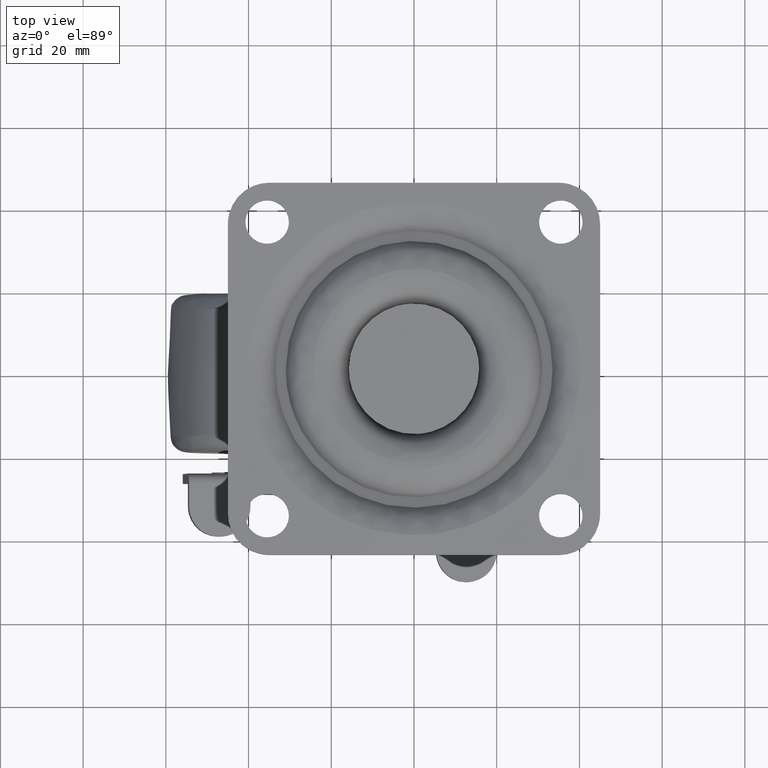
[diagram: clean part render]
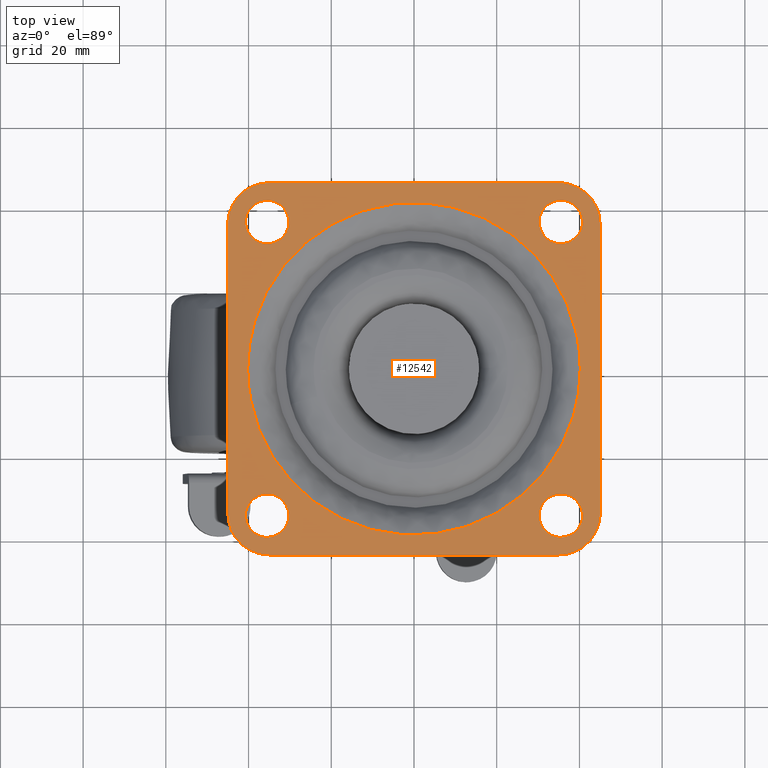
[diagram: same view with one face highlighted and labeled with its STEP entity id]
A machine part, top view. The second image highlights one B-rep face of the part: STEP entity #12542.
In plain terms, the highlighted face is a freeform B-spline surface patch.
Its self-contained STEP definition (entity closure, byte-faithful):
#11165=CARTESIAN_POINT('',(-35.820504832751801,30.259792308297051,2.775558E-017));
#11166=VERTEX_POINT('',#11165);
#11167=CARTESIAN_POINT('',(-30.250000000000000,35.500000000000000,0.0));
#11168=VERTEX_POINT('',#11167);
#11169=CARTESIAN_POINT('',(-35.820504832751809,30.259792308297047,0.0));
#11170=CARTESIAN_POINT('',(-35.660402007414767,30.250000000000000,0.0));
#11171=CARTESIAN_POINT('',(-35.500000000000000,30.250000000000000,0.0));
#11172=CARTESIAN_POINT('',(-30.249999999999986,30.249999999999986,0.0));
#11173=CARTESIAN_POINT('',(-30.250000000000000,35.500000000000000,0.0));
#11181=(BOUNDED_CURVE()B_SPLINE_CURVE(2,(#11169,#11170,#11171,#11172,#11173),.UNSPECIFIED.,.F.,.U.)B_SPLINE_CURVE_WITH_KNOTS((3,2,3),(0.239332962235587,0.250000000000000,0.500000000000000),.UNSPECIFIED.)CURVE()GEOMETRIC_REPRESENTATION_ITEM()RATIONAL_B_SPLINE_CURVE((0.976072041659525,0.987502787895906,1.0,0.707106781186547,1.0))REPRESENTATION_ITEM(''));
#11182=EDGE_CURVE('',#11166,#11168,#11181,.T.);
#11184=CARTESIAN_POINT('',(-35.179495167248213,40.740207691702949,2.775558E-017));
#11185=VERTEX_POINT('',#11184);
#11186=CARTESIAN_POINT('',(-30.250000000000000,35.500000000000000,0.0));
#11187=CARTESIAN_POINT('',(-30.249999999999986,40.438706851071906,0.0));
#11188=CARTESIAN_POINT('',(-35.179495167248206,40.740207691702935,0.0));
#11196=(BOUNDED_CURVE()B_SPLINE_CURVE(2,(#11186,#11187,#11188),.UNSPECIFIED.,.F.,.U.)B_SPLINE_CURVE_WITH_KNOTS((3,3),(0.500000000000000,0.739332962235587),.UNSPECIFIED.)CURVE()GEOMETRIC_REPRESENTATION_ITEM()RATIONAL_B_SPLINE_CURVE((1.0,0.719603993290642,0.976072041659526))REPRESENTATION_ITEM(''));
#11197=EDGE_CURVE('',#11168,#11185,#11196,.T.);
#11264=CARTESIAN_POINT('',(-40.749999999999993,35.500000000000000,0.0));
#11265=VERTEX_POINT('',#11264);
#11266=CARTESIAN_POINT('',(-40.749999999999993,35.500000000000000,0.0));
#11267=CARTESIAN_POINT('',(-40.749999999999986,30.561293148928090,0.0));
#11268=CARTESIAN_POINT('',(-35.820504832751809,30.259792308297044,0.0));
#11276=(BOUNDED_CURVE()B_SPLINE_CURVE(2,(#11266,#11267,#11268),.UNSPECIFIED.,.F.,.U.)B_SPLINE_CURVE_WITH_KNOTS((3,3),(0.0,0.239332962235587),.UNSPECIFIED.)CURVE()GEOMETRIC_REPRESENTATION_ITEM()RATIONAL_B_SPLINE_CURVE((1.0,0.719603993290642,0.976072041659525))REPRESENTATION_ITEM(''));
#11277=EDGE_CURVE('',#11265,#11166,#11276,.T.);
#11311=CARTESIAN_POINT('',(-35.179495167248206,40.740207691702928,0.0));
#11312=CARTESIAN_POINT('',(-35.339597992585240,40.749999999999986,0.0));
#11313=CARTESIAN_POINT('',(-35.500000000000000,40.749999999999993,0.0));
#11314=CARTESIAN_POINT('',(-40.749999999999986,40.749999999999986,0.0));
#11315=CARTESIAN_POINT('',(-40.749999999999993,35.500000000000000,0.0));
#11323=(BOUNDED_CURVE()B_SPLINE_CURVE(2,(#11311,#11312,#11313,#11314,#11315),.UNSPECIFIED.,.F.,.U.)B_SPLINE_CURVE_WITH_KNOTS((3,2,3),(0.739332962235587,0.750000000000000,1.0),.UNSPECIFIED.)CURVE()GEOMETRIC_REPRESENTATION_ITEM()RATIONAL_B_SPLINE_CURVE((0.976072041659526,0.987502787895906,1.0,0.707106781186547,1.0))REPRESENTATION_ITEM(''));
#11324=EDGE_CURVE('',#11185,#11265,#11323,.T.);
#11347=CARTESIAN_POINT('',(35.179495167248199,30.259792308297051,-1.665335E-016));
#11348=VERTEX_POINT('',#11347);
#11349=CARTESIAN_POINT('',(40.749999999999993,35.500000000000000,0.0));
#11350=VERTEX_POINT('',#11349);
#11351=CARTESIAN_POINT('',(35.179495167248199,30.259792308297051,0.0));
#11352=CARTESIAN_POINT('',(35.339597992585240,30.249999999999996,0.0));
#11353=CARTESIAN_POINT('',(35.500000000000000,30.250000000000000,0.0));
#11354=CARTESIAN_POINT('',(40.749999999999986,30.249999999999986,0.0));
#11355=CARTESIAN_POINT('',(40.749999999999993,35.500000000000000,0.0));
#11363=(BOUNDED_CURVE()B_SPLINE_CURVE(2,(#11351,#11352,#11353,#11354,#11355),.UNSPECIFIED.,.F.,.U.)B_SPLINE_CURVE_WITH_KNOTS((3,2,3),(0.239332962235587,0.250000000000000,0.500000000000000),.UNSPECIFIED.)CURVE()GEOMETRIC_REPRESENTATION_ITEM()RATIONAL_B_SPLINE_CURVE((0.976072041659525,0.987502787895906,1.0,0.707106781186547,1.0))REPRESENTATION_ITEM(''));
#11364=EDGE_CURVE('',#11348,#11350,#11363,.T.);
#11366=CARTESIAN_POINT('',(35.820504832751787,40.740207691702949,2.775558E-017));
#11367=VERTEX_POINT('',#11366);
#11368=CARTESIAN_POINT('',(40.749999999999993,35.500000000000000,0.0));
#11369=CARTESIAN_POINT('',(40.749999999999993,40.438706851071906,0.0));
#11370=CARTESIAN_POINT('',(35.820504832751787,40.740207691702935,0.0));
#11378=(BOUNDED_CURVE()B_SPLINE_CURVE(2,(#11368,#11369,#11370),.UNSPECIFIED.,.F.,.U.)B_SPLINE_CURVE_WITH_KNOTS((3,3),(0.500000000000000,0.739332962235587),.UNSPECIFIED.)CURVE()GEOMETRIC_REPRESENTATION_ITEM()RATIONAL_B_SPLINE_CURVE((1.0,0.719603993290642,0.976072041659526))REPRESENTATION_ITEM(''));
#11379=EDGE_CURVE('',#11350,#11367,#11378,.T.);
#11446=CARTESIAN_POINT('',(30.250000000000000,35.500000000000000,0.0));
#11447=VERTEX_POINT('',#11446);
#11448=CARTESIAN_POINT('',(30.250000000000000,35.500000000000000,0.0));
#11449=CARTESIAN_POINT('',(30.249999999999993,30.561293148928080,0.0));
#11450=CARTESIAN_POINT('',(35.179495167248199,30.259792308297051,0.0));
#11458=(BOUNDED_CURVE()B_SPLINE_CURVE(2,(#11448,#11449,#11450),.UNSPECIFIED.,.F.,.U.)B_SPLINE_CURVE_WITH_KNOTS((3,3),(0.0,0.239332962235587),.UNSPECIFIED.)CURVE()GEOMETRIC_REPRESENTATION_ITEM()RATIONAL_B_SPLINE_CURVE((1.0,0.719603993290642,0.976072041659525))REPRESENTATION_ITEM(''));
#11459=EDGE_CURVE('',#11447,#11348,#11458,.T.);
#11493=CARTESIAN_POINT('',(35.820504832751787,40.740207691702935,0.0));
#11494=CARTESIAN_POINT('',(35.660402007414753,40.749999999999986,0.0));
#11495=CARTESIAN_POINT('',(35.500000000000000,40.749999999999993,0.0));
#11496=CARTESIAN_POINT('',(30.249999999999986,40.749999999999986,0.0));
#11497=CARTESIAN_POINT('',(30.250000000000000,35.500000000000000,0.0));
#11505=(BOUNDED_CURVE()B_SPLINE_CURVE(2,(#11493,#11494,#11495,#11496,#11497),.UNSPECIFIED.,.F.,.U.)B_SPLINE_CURVE_WITH_KNOTS((3,2,3),(0.739332962235587,0.750000000000000,1.0),.UNSPECIFIED.)CURVE()GEOMETRIC_REPRESENTATION_ITEM()RATIONAL_B_SPLINE_CURVE((0.976072041659526,0.987502787895906,1.0,0.707106781186547,1.0))REPRESENTATION_ITEM(''));
#11506=EDGE_CURVE('',#11367,#11447,#11505,.T.);
#11529=CARTESIAN_POINT('',(35.179495167248199,-40.740207691702949,2.775558E-017));
#11530=VERTEX_POINT('',#11529);
#11531=CARTESIAN_POINT('',(40.749999999999993,-35.500000000000000,0.0));
#11532=VERTEX_POINT('',#11531);
#11533=CARTESIAN_POINT('',(35.179495167248199,-40.740207691702942,0.0));
#11534=CARTESIAN_POINT('',(35.339597992585233,-40.749999999999993,0.0));
#11535=CARTESIAN_POINT('',(35.500000000000000,-40.749999999999993,0.0));
#11536=CARTESIAN_POINT('',(40.749999999999986,-40.749999999999986,0.0));
#11537=CARTESIAN_POINT('',(40.749999999999993,-35.500000000000000,0.0));
#11545=(BOUNDED_CURVE()B_SPLINE_CURVE(2,(#11533,#11534,#11535,#11536,#11537),.UNSPECIFIED.,.F.,.U.)B_SPLINE_CURVE_WITH_KNOTS((3,2,3),(0.239332962235587,0.250000000000000,0.500000000000000),.UNSPECIFIED.)CURVE()GEOMETRIC_REPRESENTATION_ITEM()RATIONAL_B_SPLINE_CURVE((0.976072041659525,0.987502787895906,1.0,0.707106781186547,1.0))REPRESENTATION_ITEM(''));
#11546=EDGE_CURVE('',#11530,#11532,#11545,.T.);
#11548=CARTESIAN_POINT('',(35.820504832751787,-30.259792308297051,2.775558E-017));
#11549=VERTEX_POINT('',#11548);
#11550=CARTESIAN_POINT('',(40.749999999999993,-35.500000000000000,0.0));
#11551=CARTESIAN_POINT('',(40.749999999999993,-30.561293148928076,0.0));
#11552=CARTESIAN_POINT('',(35.820504832751787,-30.259792308297047,0.0));
#11560=(BOUNDED_CURVE()B_SPLINE_CURVE(2,(#11550,#11551,#11552),.UNSPECIFIED.,.F.,.U.)B_SPLINE_CURVE_WITH_KNOTS((3,3),(0.500000000000000,0.739332962235587),.UNSPECIFIED.)CURVE()GEOMETRIC_REPRESENTATION_ITEM()RATIONAL_B_SPLINE_CURVE((1.0,0.719603993290642,0.976072041659526))REPRESENTATION_ITEM(''));
#11561=EDGE_CURVE('',#11532,#11549,#11560,.T.);
#11628=CARTESIAN_POINT('',(30.250000000000000,-35.500000000000000,0.0));
#11629=VERTEX_POINT('',#11628);
#11630=CARTESIAN_POINT('',(30.250000000000000,-35.500000000000000,0.0));
#11631=CARTESIAN_POINT('',(30.249999999999996,-40.438706851071913,0.0));
#11632=CARTESIAN_POINT('',(35.179495167248199,-40.740207691702942,0.0));
#11640=(BOUNDED_CURVE()B_SPLINE_CURVE(2,(#11630,#11631,#11632),.UNSPECIFIED.,.F.,.U.)B_SPLINE_CURVE_WITH_KNOTS((3,3),(0.0,0.239332962235587),.UNSPECIFIED.)CURVE()GEOMETRIC_REPRESENTATION_ITEM()RATIONAL_B_SPLINE_CURVE((1.0,0.719603993290642,0.976072041659525))REPRESENTATION_ITEM(''));
#11641=EDGE_CURVE('',#11629,#11530,#11640,.T.);
#11675=CARTESIAN_POINT('',(35.820504832751801,-30.259792308297047,0.0));
#11676=CARTESIAN_POINT('',(35.660402007414760,-30.249999999999996,0.0));
#11677=CARTESIAN_POINT('',(35.500000000000000,-30.250000000000000,0.0));
#11678=CARTESIAN_POINT('',(30.249999999999986,-30.249999999999986,0.0));
#11679=CARTESIAN_POINT('',(30.250000000000000,-35.500000000000000,0.0));
#11687=(BOUNDED_CURVE()B_SPLINE_CURVE(2,(#11675,#11676,#11677,#11678,#11679),.UNSPECIFIED.,.F.,.U.)B_SPLINE_CURVE_WITH_KNOTS((3,2,3),(0.739332962235587,0.750000000000000,1.0),.UNSPECIFIED.)CURVE()GEOMETRIC_REPRESENTATION_ITEM()RATIONAL_B_SPLINE_CURVE((0.976072041659525,0.987502787895906,1.0,0.707106781186547,1.0))REPRESENTATION_ITEM(''));
#11688=EDGE_CURVE('',#11549,#11629,#11687,.T.);
#11711=CARTESIAN_POINT('',(-35.820504832751787,-40.740207691702949,2.775558E-017));
#11712=VERTEX_POINT('',#11711);
#11713=CARTESIAN_POINT('',(-30.250000000000000,-35.500000000000000,0.0));
#11714=VERTEX_POINT('',#11713);
#11715=CARTESIAN_POINT('',(-35.820504832751787,-40.740207691702942,0.0));
#11716=CARTESIAN_POINT('',(-35.660402007414753,-40.749999999999993,0.0));
#11717=CARTESIAN_POINT('',(-35.500000000000000,-40.749999999999993,0.0));
#11718=CARTESIAN_POINT('',(-30.249999999999986,-40.749999999999986,0.0));
#11719=CARTESIAN_POINT('',(-30.250000000000000,-35.500000000000000,0.0));
#11727=(BOUNDED_CURVE()B_SPLINE_CURVE(2,(#11715,#11716,#11717,#11718,#11719),.UNSPECIFIED.,.F.,.U.)B_SPLINE_CURVE_WITH_KNOTS((3,2,3),(0.239332962235587,0.250000000000000,0.500000000000000),.UNSPECIFIED.)CURVE()GEOMETRIC_REPRESENTATION_ITEM()RATIONAL_B_SPLINE_CURVE((0.976072041659526,0.987502787895906,1.0,0.707106781186547,1.0))REPRESENTATION_ITEM(''));
#11728=EDGE_CURVE('',#11712,#11714,#11727,.T.);
#11730=CARTESIAN_POINT('',(-35.179495167248213,-30.259792308297051,-1.665335E-016));
#11731=VERTEX_POINT('',#11730);
#11732=CARTESIAN_POINT('',(-30.250000000000000,-35.500000000000000,0.0));
#11733=CARTESIAN_POINT('',(-30.249999999999986,-30.561293148928076,0.0));
#11734=CARTESIAN_POINT('',(-35.179495167248206,-30.259792308297047,0.0));
#11742=(BOUNDED_CURVE()B_SPLINE_CURVE(2,(#11732,#11733,#11734),.UNSPECIFIED.,.F.,.U.)B_SPLINE_CURVE_WITH_KNOTS((3,3),(0.500000000000000,0.739332962235587),.UNSPECIFIED.)CURVE()GEOMETRIC_REPRESENTATION_ITEM()RATIONAL_B_SPLINE_CURVE((1.0,0.719603993290642,0.976072041659526))REPRESENTATION_ITEM(''));
#11743=EDGE_CURVE('',#11714,#11731,#11742,.T.);
#11810=CARTESIAN_POINT('',(-40.749999999999993,-35.500000000000000,0.0));
#11811=VERTEX_POINT('',#11810);
#11812=CARTESIAN_POINT('',(-40.749999999999993,-35.500000000000000,0.0));
#11813=CARTESIAN_POINT('',(-40.749999999999993,-40.438706851071920,0.0));
#11814=CARTESIAN_POINT('',(-35.820504832751794,-40.740207691702928,0.0));
#11822=(BOUNDED_CURVE()B_SPLINE_CURVE(2,(#11812,#11813,#11814),.UNSPECIFIED.,.F.,.U.)B_SPLINE_CURVE_WITH_KNOTS((3,3),(0.0,0.239332962235587),.UNSPECIFIED.)CURVE()GEOMETRIC_REPRESENTATION_ITEM()RATIONAL_B_SPLINE_CURVE((1.0,0.719603993290641,0.976072041659526))REPRESENTATION_ITEM(''));
#11823=EDGE_CURVE('',#11811,#11712,#11822,.T.);
#11857=CARTESIAN_POINT('',(-35.179495167248206,-30.259792308297051,0.0));
#11858=CARTESIAN_POINT('',(-35.339597992585240,-30.249999999999996,0.0));
#11859=CARTESIAN_POINT('',(-35.500000000000000,-30.250000000000000,0.0));
#11860=CARTESIAN_POINT('',(-40.749999999999986,-30.249999999999986,0.0));
#11861=CARTESIAN_POINT('',(-40.749999999999993,-35.500000000000000,0.0));
#11869=(BOUNDED_CURVE()B_SPLINE_CURVE(2,(#11857,#11858,#11859,#11860,#11861),.UNSPECIFIED.,.F.,.U.)B_SPLINE_CURVE_WITH_KNOTS((3,2,3),(0.739332962235587,0.750000000000000,1.0),.UNSPECIFIED.)CURVE()GEOMETRIC_REPRESENTATION_ITEM()RATIONAL_B_SPLINE_CURVE((0.976072041659526,0.987502787895906,1.0,0.707106781186547,1.0))REPRESENTATION_ITEM(''));
#11870=EDGE_CURVE('',#11731,#11811,#11869,.T.);
#12266=CARTESIAN_POINT('',(-38.540439564951292,11.460112629843660,-1.113611E-015));
#12267=VERTEX_POINT('',#12266);
#12281=CARTESIAN_POINT('',(-40.208203932499401,0.0,0.0));
#12282=VERTEX_POINT('',#12281);
#12283=CARTESIAN_POINT('',(-40.208203932499401,0.0,0.0));
#12284=CARTESIAN_POINT('',(-40.208203931730026,5.851409309881770,-5.568056E-016));
#12285=CARTESIAN_POINT('',(-38.540439564951278,11.460112629843657,-1.113611E-015));
#12293=(BOUNDED_CURVE()B_SPLINE_CURVE(2,(#12283,#12284,#12285),.UNSPECIFIED.,.F.,.U.)B_SPLINE_CURVE_WITH_KNOTS((3,3),(0.0,0.048526662065398),.UNSPECIFIED.)CURVE()GEOMETRIC_REPRESENTATION_ITEM()RATIONAL_B_SPLINE_CURVE((1.0,0.943147478997572,0.908365862589150))REPRESENTATION_ITEM(''));
#12294=EDGE_CURVE('',#12282,#12267,#12293,.T.);
#12296=CARTESIAN_POINT('',(38.540439564951299,-11.460112629843660,-1.113611E-015));
#12297=VERTEX_POINT('',#12296);
#12298=CARTESIAN_POINT('',(38.540439564951299,-11.460112629843660,-1.113611E-015));
#12299=CARTESIAN_POINT('',(37.795821765132509,-13.965342330398570,-1.108348E-015));
#12300=CARTESIAN_POINT('',(36.268088796374869,-17.717719020729088,-1.094754E-015));
#12301=CARTESIAN_POINT('',(33.475686237040442,-22.408159612348609,-1.065537E-015));
#12302=CARTESIAN_POINT('',(30.562148134557368,-26.298647580398530,-1.033031E-015));
#12303=CARTESIAN_POINT('',(27.222615185059059,-29.736078502935911,-9.937124E-016));
#12304=CARTESIAN_POINT('',(23.193328854095508,-32.957725252187927,-9.444071E-016));
#12305=CARTESIAN_POINT('',(18.620848232331230,-35.808635493543171,-8.868325E-016));
#12306=CARTESIAN_POINT('',(13.047188248337870,-38.211680929306013,-8.144909E-016));
#12307=CARTESIAN_POINT('',(7.603063371804116,-39.591631584371193,-7.418813E-016));
#12308=CARTESIAN_POINT('',(3.002549657343119,-40.159884822911181,-6.793183E-016));
#12309=CARTESIAN_POINT('',(-0.659272947269974,-40.252946300360541,-6.287967E-016));
#12310=CARTESIAN_POINT('',(-5.060105832568339,-39.984562546823739,-5.673129E-016));
#12311=CARTESIAN_POINT('',(-9.409390183143508,-39.202337641466052,-5.055073E-016));
#12312=CARTESIAN_POINT('',(-14.332143039577920,-37.661692490658623,-4.342319E-016));
#12313=CARTESIAN_POINT('',(-18.163121735747350,-35.962306849017551,-3.777556E-016));
#12314=CARTESIAN_POINT('',(-21.976221599427159,-33.747760293656782,-3.204886E-016));
#12315=CARTESIAN_POINT('',(-25.133110061192831,-31.476569620860101,-2.721948E-016));
#12316=CARTESIAN_POINT('',(-28.597034792919320,-28.397051067213820,-2.180201E-016));
#12317=CARTESIAN_POINT('',(-31.582292405058489,-25.041584441097040,-1.699178E-016));
#12318=CARTESIAN_POINT('',(-34.056746521906462,-21.480416663085649,-1.284747E-016));
#12319=CARTESIAN_POINT('',(-36.303758250302991,-17.513613881714470,-8.936377E-017));
#12320=CARTESIAN_POINT('',(-37.977682542489248,-13.504917534335179,-5.810454E-017));
#12321=CARTESIAN_POINT('',(-39.300448521802878,-8.830522793075060,-3.036660E-017));
#12322=CARTESIAN_POINT('',(-40.033289125722291,-4.629671143317897,-1.175230E-017));
#12323=CARTESIAN_POINT('',(-40.208234757607663,-1.493441700746538,-3.009271E-018));
#12324=CARTESIAN_POINT('',(-40.208203932499401,0.0,0.0));
#12325=B_SPLINE_CURVE_WITH_KNOTS('',3,(#12298,#12299,#12300,#12301,#12302,#12303,#12304,#12305,#12306,#12307,#12308,#12309,#12310,#12311,#12312,#12313,#12314,#12315,#12316,#12317,#12318,#12319,#12320,#12321,#12322,#12323,#12324),.UNSPECIFIED.,.F.,.U.,(4,1,1,1,1,1,1,1,1,1,1,1,1,1,1,1,1,1,1,1,1,1,1,1,4),(0.000000025216252,7.840573062430906,12.096918016360140,16.353234764167890,22.401704575651561,26.434010814585751,31.810430364049271,38.530954436930699,44.579413033762847,48.611757353039863,52.419900248934240,55.556149581855742,61.828692757039263,65.636945986846740,71.013366380022376,74.373628016034203,78.853979624156736,82.662277535663520,88.262707158904263,92.295016460231864,95.655295295375382,101.927777206021700,105.288000604014600,110.216379881113990,114.696709005320500),.UNSPECIFIED.);
#12326=EDGE_CURVE('',#12297,#12282,#12325,.T.);
#12369=CARTESIAN_POINT('',(40.208203932499401,0.0,0.0));
#12370=VERTEX_POINT('',#12369);
#12371=CARTESIAN_POINT('',(40.208203932499401,0.0,0.0));
#12372=CARTESIAN_POINT('',(40.208203931730026,-5.851409309881769,-5.568056E-016));
#12373=CARTESIAN_POINT('',(38.540439564951299,-11.460112629843657,-1.113611E-015));
#12381=(BOUNDED_CURVE()B_SPLINE_CURVE(2,(#12371,#12372,#12373),.UNSPECIFIED.,.F.,.U.)B_SPLINE_CURVE_WITH_KNOTS((3,3),(0.500000000000000,0.548526662065398),.UNSPECIFIED.)CURVE()GEOMETRIC_REPRESENTATION_ITEM()RATIONAL_B_SPLINE_CURVE((1.0,0.943147478997572,0.908365862589150))REPRESENTATION_ITEM(''));
#12382=EDGE_CURVE('',#12370,#12297,#12381,.T.);
#12384=CARTESIAN_POINT('',(-38.540439564951292,11.460112629843660,-1.113611E-015));
#12385=CARTESIAN_POINT('',(-37.923381750150106,13.535834131695919,-1.109249E-015));
#12386=CARTESIAN_POINT('',(-36.677572139631359,16.748884495506680,-1.098472E-015));
#12387=CARTESIAN_POINT('',(-34.178166302812102,21.346336807139348,-1.073126E-015));
#12388=CARTESIAN_POINT('',(-31.769851146094389,24.776268177075401,-1.046687E-015));
#12389=CARTESIAN_POINT('',(-28.810215689424961,28.145121785536240,-1.012491E-015));
#12390=CARTESIAN_POINT('',(-25.197121807352580,31.509314559702322,-9.692368E-016));
#12391=CARTESIAN_POINT('',(-20.398511693151100,34.846237569755672,-9.095102E-016));
#12392=CARTESIAN_POINT('',(-15.068600871822900,37.413167966629103,-8.408743E-016));
#12393=CARTESIAN_POINT('',(-9.586714529588557,39.183336474889749,-7.685282E-016));
#12394=CARTESIAN_POINT('',(-4.717208078747849,40.034565322001221,-7.028105E-016));
#12395=CARTESIAN_POINT('',(0.433714437970055,40.294786585509783,-6.320046E-016));
#12396=CARTESIAN_POINT('',(4.990462611081474,40.004015322443607,-5.683165E-016));
#12397=CARTESIAN_POINT('',(10.279251950537340,38.991905108348149,-4.930374E-016));
#12398=CARTESIAN_POINT('',(15.610452141369800,37.225267955277708,-4.156503E-016));
#12399=CARTESIAN_POINT('',(20.410553612159521,34.767358282699767,-3.442249E-016));
#12400=CARTESIAN_POINT('',(24.486560851957389,31.987152183330110,-2.821772E-016));
#12401=CARTESIAN_POINT('',(28.305401710778050,28.741712991926882,-2.227532E-016));
#12402=CARTESIAN_POINT('',(32.139676150368821,24.431882699549831,-1.609704E-016));
#12403=CARTESIAN_POINT('',(35.296855986124093,19.517735316608601,-1.073463E-016));
#12404=CARTESIAN_POINT('',(37.281102758132221,15.242567265878639,-7.125266E-017));
#12405=CARTESIAN_POINT('',(38.678639527343492,11.218805392700499,-4.379049E-017));
#12406=CARTESIAN_POINT('',(39.854313646201220,6.347053421351478,-1.769176E-017));
#12407=CARTESIAN_POINT('',(40.208451376029359,2.389527151357984,-4.812132E-018));
#12408=CARTESIAN_POINT('',(40.208203932499401,0.0,0.0));
#12409=B_SPLINE_CURVE_WITH_KNOTS('',3,(#12384,#12385,#12386,#12387,#12388,#12389,#12390,#12391,#12392,#12393,#12394,#12395,#12396,#12397,#12398,#12399,#12400,#12401,#12402,#12403,#12404,#12405,#12406,#12407,#12408),.UNSPECIFIED.,.F.,.U.,(4,1,1,1,1,1,1,1,1,1,1,1,1,1,1,1,1,1,1,1,1,1,4),(0.000000024725466,6.496467788988184,10.304758629827280,15.681183944968540,19.041445229484442,23.745806271173731,30.466321053762311,36.514780527521147,41.443193744071323,47.715668989986227,51.299902523249060,56.900248375963123,61.380607072786681,67.429110680320917,73.701578885155342,77.509873433726639,82.214242291164226,88.710751451723070,94.759225531075572,99.687585625715585,102.823850426941210,107.528171829941000,114.696709005321690),.UNSPECIFIED.);
#12410=EDGE_CURVE('',#12267,#12370,#12409,.T.);
#12417=CARTESIAN_POINT('',(-49.495499825562533,49.495499825562533,0.0));
#12418=CARTESIAN_POINT('',(49.495502239550653,49.495499825562533,0.0));
#12419=CARTESIAN_POINT('',(-49.495499825562533,-49.495502239550653,0.0));
#12420=CARTESIAN_POINT('',(49.495502239550653,-49.495502239550653,0.0));
#12421=B_SPLINE_SURFACE_WITH_KNOTS('',1,1,((#12417,#12419),(#12418,#12420)),.UNSPECIFIED.,.F.,.F.,.U.,(2,2),(2,2),(0.0,98.991002065113179),(0.0,98.991002065113179),.UNSPECIFIED.);
#12422=CARTESIAN_POINT('',(35.0,45.0,0.0));
#12423=VERTEX_POINT('',#12422);
#12424=CARTESIAN_POINT('',(-35.0,45.0,0.0));
#12425=VERTEX_POINT('',#12424);
#12426=CARTESIAN_POINT('',(35.0,45.0,0.0));
#12427=CARTESIAN_POINT('',(-35.0,45.0,0.0));
#12428=QUASI_UNIFORM_CURVE('',1,(#12426,#12427),.UNSPECIFIED.,.F.,.U.);
#12429=EDGE_CURVE('',#12423,#12425,#12428,.T.);
#12430=ORIENTED_EDGE('',*,*,#12429,.T.);
#12431=CARTESIAN_POINT('',(-45.0,35.0,0.0));
#12432=VERTEX_POINT('',#12431);
#12433=CARTESIAN_POINT('',(-35.0,45.000000000000007,0.0));
#12434=CARTESIAN_POINT('',(-45.000000000000014,45.000000000000014,0.0));
#12435=CARTESIAN_POINT('',(-45.000000000000007,35.0,0.0));
#12443=(BOUNDED_CURVE()B_SPLINE_CURVE(2,(#12433,#12434,#12435),.UNSPECIFIED.,.F.,.U.)CURVE()GEOMETRIC_REPRESENTATION_ITEM()QUASI_UNIFORM_CURVE()RATIONAL_B_SPLINE_CURVE((1.0,0.707106781186548,1.0))REPRESENTATION_ITEM(''));
#12444=EDGE_CURVE('',#12425,#12432,#12443,.T.);
#12445=ORIENTED_EDGE('',*,*,#12444,.T.);
#12446=CARTESIAN_POINT('',(-45.0,-35.0,0.0));
#12447=VERTEX_POINT('',#12446);
#12448=CARTESIAN_POINT('',(-45.0,35.0,0.0));
#12449=CARTESIAN_POINT('',(-45.0,-35.0,0.0));
#12450=QUASI_UNIFORM_CURVE('',1,(#12448,#12449),.UNSPECIFIED.,.F.,.U.);
#12451=EDGE_CURVE('',#12432,#12447,#12450,.T.);
#12452=ORIENTED_EDGE('',*,*,#12451,.T.);
#12453=CARTESIAN_POINT('',(-35.0,-45.0,0.0));
#12454=VERTEX_POINT('',#12453);
#12455=CARTESIAN_POINT('',(-45.000000000000007,-35.0,0.0));
#12456=CARTESIAN_POINT('',(-45.000000000000014,-45.000000000000014,0.0));
#12457=CARTESIAN_POINT('',(-35.0,-45.000000000000007,0.0));
#12465=(BOUNDED_CURVE()B_SPLINE_CURVE(2,(#12455,#12456,#12457),.UNSPECIFIED.,.F.,.U.)CURVE()GEOMETRIC_REPRESENTATION_ITEM()QUASI_UNIFORM_CURVE()RATIONAL_B_SPLINE_CURVE((1.0,0.707106781186548,1.0))REPRESENTATION_ITEM(''));
#12466=EDGE_CURVE('',#12447,#12454,#12465,.T.);
#12467=ORIENTED_EDGE('',*,*,#12466,.T.);
#12468=CARTESIAN_POINT('',(35.0,-45.0,0.0));
#12469=VERTEX_POINT('',#12468);
#12470=CARTESIAN_POINT('',(-35.0,-45.0,0.0));
#12471=CARTESIAN_POINT('',(35.0,-45.0,0.0));
#12472=QUASI_UNIFORM_CURVE('',1,(#12470,#12471),.UNSPECIFIED.,.F.,.U.);
#12473=EDGE_CURVE('',#12454,#12469,#12472,.T.);
#12474=ORIENTED_EDGE('',*,*,#12473,.T.);
#12475=CARTESIAN_POINT('',(45.0,-35.0,0.0));
#12476=VERTEX_POINT('',#12475);
#12477=CARTESIAN_POINT('',(35.0,-45.000000000000007,0.0));
#12478=CARTESIAN_POINT('',(45.000000000000014,-45.000000000000014,0.0));
#12479=CARTESIAN_POINT('',(45.000000000000007,-35.0,0.0));
#12487=(BOUNDED_CURVE()B_SPLINE_CURVE(2,(#12477,#12478,#12479),.UNSPECIFIED.,.F.,.U.)CURVE()GEOMETRIC_REPRESENTATION_ITEM()QUASI_UNIFORM_CURVE()RATIONAL_B_SPLINE_CURVE((1.0,0.707106781186548,1.0))REPRESENTATION_ITEM(''));
#12488=EDGE_CURVE('',#12469,#12476,#12487,.T.);
#12489=ORIENTED_EDGE('',*,*,#12488,.T.);
#12490=CARTESIAN_POINT('',(45.0,35.0,0.0));
#12491=VERTEX_POINT('',#12490);
#12492=CARTESIAN_POINT('',(45.0,-35.0,0.0));
#12493=CARTESIAN_POINT('',(45.0,35.0,0.0));
#12494=QUASI_UNIFORM_CURVE('',1,(#12492,#12493),.UNSPECIFIED.,.F.,.U.);
#12495=EDGE_CURVE('',#12476,#12491,#12494,.T.);
#12496=ORIENTED_EDGE('',*,*,#12495,.T.);
#12497=CARTESIAN_POINT('',(45.000000000000007,35.0,0.0));
#12498=CARTESIAN_POINT('',(45.000000000000014,45.000000000000014,0.0));
#12499=CARTESIAN_POINT('',(35.0,45.000000000000007,0.0));
#12507=(BOUNDED_CURVE()B_SPLINE_CURVE(2,(#12497,#12498,#12499),.UNSPECIFIED.,.F.,.U.)CURVE()GEOMETRIC_REPRESENTATION_ITEM()QUASI_UNIFORM_CURVE()RATIONAL_B_SPLINE_CURVE((1.0,0.707106781186548,1.0))REPRESENTATION_ITEM(''));
#12508=EDGE_CURVE('',#12491,#12423,#12507,.T.);
#12509=ORIENTED_EDGE('',*,*,#12508,.T.);
#12510=EDGE_LOOP('',(#12430,#12445,#12452,#12467,#12474,#12489,#12496,#12509));
#12511=FACE_OUTER_BOUND('',#12510,.T.);
#12512=ORIENTED_EDGE('',*,*,#12294,.T.);
#12513=ORIENTED_EDGE('',*,*,#12410,.T.);
#12514=ORIENTED_EDGE('',*,*,#12382,.T.);
#12515=ORIENTED_EDGE('',*,*,#12326,.T.);
#12516=EDGE_LOOP('',(#12512,#12513,#12514,#12515));
#12517=FACE_BOUND('',#12516,.T.);
#12518=ORIENTED_EDGE('',*,*,#11743,.F.);
#12519=ORIENTED_EDGE('',*,*,#11728,.F.);
#12520=ORIENTED_EDGE('',*,*,#11823,.F.);
#12521=ORIENTED_EDGE('',*,*,#11870,.F.);
#12522=EDGE_LOOP('',(#12518,#12519,#12520,#12521));
#12523=FACE_BOUND('',#12522,.T.);
#12524=ORIENTED_EDGE('',*,*,#11561,.F.);
#12525=ORIENTED_EDGE('',*,*,#11546,.F.);
#12526=ORIENTED_EDGE('',*,*,#11641,.F.);
#12527=ORIENTED_EDGE('',*,*,#11688,.F.);
#12528=EDGE_LOOP('',(#12524,#12525,#12526,#12527));
#12529=FACE_BOUND('',#12528,.T.);
#12530=ORIENTED_EDGE('',*,*,#11379,.F.);
#12531=ORIENTED_EDGE('',*,*,#11364,.F.);
#12532=ORIENTED_EDGE('',*,*,#11459,.F.);
#12533=ORIENTED_EDGE('',*,*,#11506,.F.);
#12534=EDGE_LOOP('',(#12530,#12531,#12532,#12533));
#12535=FACE_BOUND('',#12534,.T.);
#12536=ORIENTED_EDGE('',*,*,#11197,.F.);
#12537=ORIENTED_EDGE('',*,*,#11182,.F.);
#12538=ORIENTED_EDGE('',*,*,#11277,.F.);
#12539=ORIENTED_EDGE('',*,*,#11324,.F.);
#12540=EDGE_LOOP('',(#12536,#12537,#12538,#12539));
#12541=FACE_BOUND('',#12540,.T.);
#12542=ADVANCED_FACE('',(#12511,#12517,#12523,#12529,#12535,#12541),#12421,.F.);